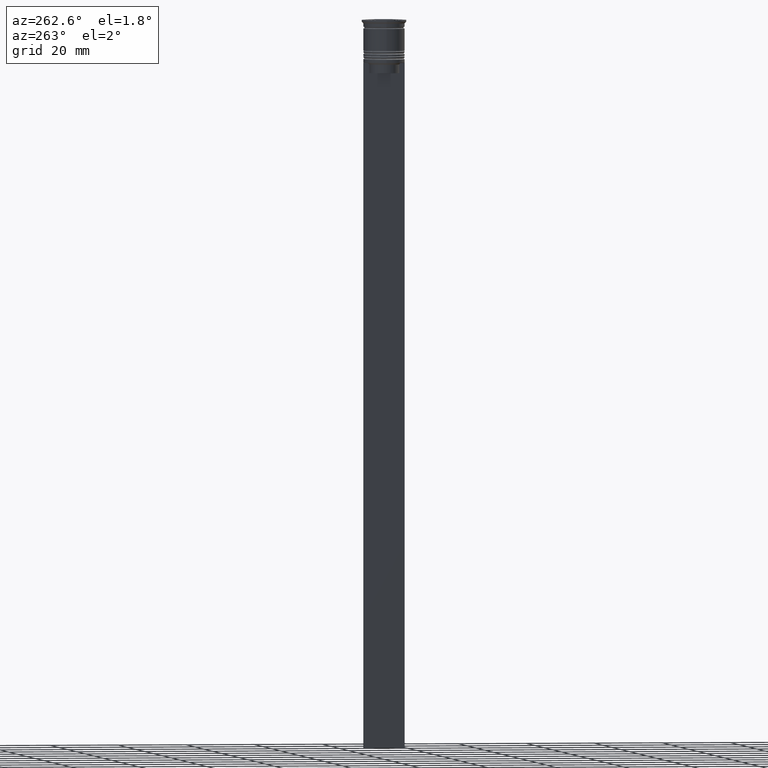
[diagram: clean part render]
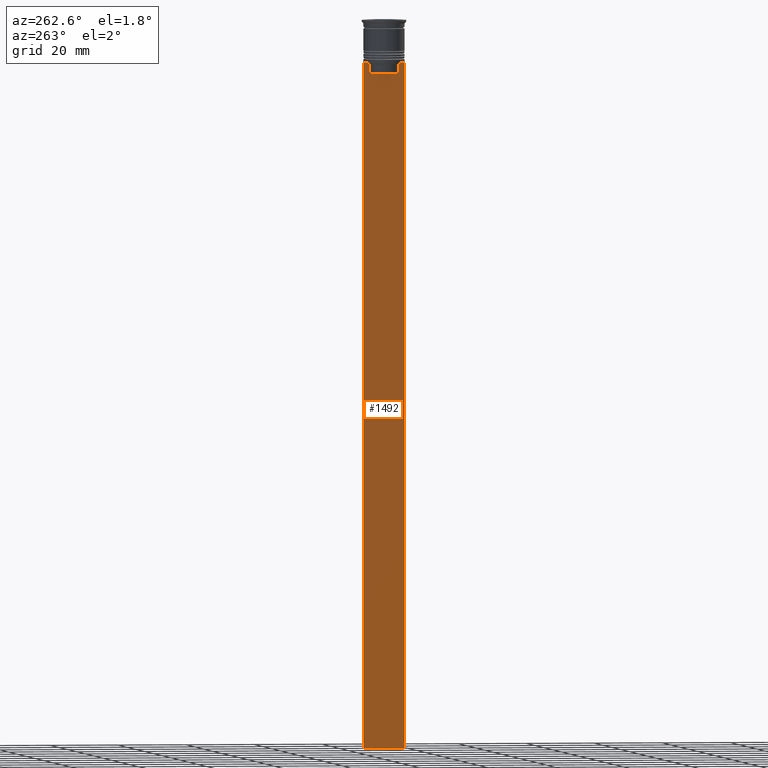
[diagram: same view with one face highlighted and labeled with its STEP entity id]
A machine part, auxiliary view. The second image highlights one B-rep face of the part: STEP entity #1492.
In plain terms, the highlighted planar face has unit normal (-1, 0, 0).
Its self-contained STEP definition (entity closure, byte-faithful):
#6 = DIRECTION ( 'NONE',  ( 0.000000000000000000, 0.000000000000000000, -1.000000000000000000 ) ) ;
#48 = CARTESIAN_POINT ( 'NONE',  ( -0.4999999999999997780, 4.371498598878878816, -15.50000000000000000 ) ) ;
#117 = VECTOR ( 'NONE', #2243, 1000.000000000000000 ) ;
#126 = CARTESIAN_POINT ( 'NONE',  ( -0.4999999999999997780, 4.539195634199897356, -12.83338923751318816 ) ) ;
#137 = EDGE_CURVE ( 'NONE', #1241, #1750, #2020, .T. ) ;
#152 = ORIENTED_EDGE ( 'NONE', *, *, #137, .F. ) ;
#226 = EDGE_CURVE ( 'NONE', #1750, #1001, #1319, .T. ) ;
#253 = VERTEX_POINT ( 'NONE', #704 ) ;
#281 = VECTOR ( 'NONE', #1649, 1000.000000000000000 ) ;
#287 = CARTESIAN_POINT ( 'NONE',  ( -0.4999999999999997780, 5.878775382679627626, -12.50000000000000000 ) ) ;
#291 = CARTESIAN_POINT ( 'NONE',  ( -0.4999999999999997780, -6.000000000000000000, -0.4584054212077061097 ) ) ;
#295 = VECTOR ( 'NONE', #2173, 1000.000000000000000 ) ;
#306 = CARTESIAN_POINT ( 'NONE',  ( -0.4999999999999997780, -6.000000000000000000, -12.50000000000000000 ) ) ;
#385 = ORIENTED_EDGE ( 'NONE', *, *, #2204, .F. ) ;
#455 = VECTOR ( 'NONE', #1889, 1000.000000000000000 ) ;
#479 = CARTESIAN_POINT ( 'NONE',  ( -0.4999999999999997780, 4.371498598878878816, -13.00000000000000178 ) ) ;
#501 = EDGE_CURVE ( 'NONE', #1001, #253, #670, .T. ) ;
#504 = CARTESIAN_POINT ( 'NONE',  ( -0.4999999999999997780, 4.706831415367290106, -12.66671683478478982 ) ) ;
#518 = CARTESIAN_POINT ( 'NONE',  ( -0.4999999999999997780, -4.371498598878878816, 0.000000000000000000 ) ) ;
#529 = DIRECTION ( 'NONE',  ( 0.000000000000000000, 1.000000000000000000, 0.000000000000000000 ) ) ;
#559 = CARTESIAN_POINT ( 'NONE',  ( -0.4999999999999997780, 4.371498598878878816, 0.000000000000000000 ) ) ;
#602 = LINE ( 'NONE', #1032, #295 ) ;
#607 = EDGE_CURVE ( 'NONE', #253, #1152, #2485, .T. ) ;
#622 = B_SPLINE_CURVE_WITH_KNOTS ( 'NONE', 3,
 ( #832, #1993, #633, #1427 ),
 .UNSPECIFIED., .F., .F.,
 ( 4, 4 ),
 ( 0.02089901220910806920, 0.02161421017310284978 ),
 .UNSPECIFIED. ) ;
#633 = CARTESIAN_POINT ( 'NONE',  ( -0.4999999999999997780, -4.706831372970964544, -12.66671687695981596 ) ) ;
#670 = LINE ( 'NONE', #291, #455 ) ;
#685 = CARTESIAN_POINT ( 'NONE',  ( -0.4999999999999997780, -4.874423042781576676, -12.50000000000000000 ) ) ;
#696 = LINE ( 'NONE', #2023, #840 ) ;
#704 = CARTESIAN_POINT ( 'NONE',  ( -0.4999999999999997780, -6.000000000000000000, -212.5000000000000284 ) ) ;
#718 = AXIS2_PLACEMENT_3D ( 'NONE', #1552, #1403, #1330 ) ;
#726 = LINE ( 'NONE', #920, #1413 ) ;
#762 = CARTESIAN_POINT ( 'NONE',  ( -0.4999999999999997780, -6.000000000000000000, -212.5000000000000284 ) ) ;
#832 = CARTESIAN_POINT ( 'NONE',  ( -0.4999999999999997780, -4.371498598878878816, -13.00000000000000178 ) ) ;
#840 = VECTOR ( 'NONE', #1441, 1000.000000000000000 ) ;
#920 = CARTESIAN_POINT ( 'NONE',  ( -0.4999999999999997780, -6.000000000000000000, -12.50000000000000000 ) ) ;
#954 = PLANE ( 'NONE',  #718 ) ;
#970 = EDGE_CURVE ( 'NONE', #2285, #1040, #2107, .T. ) ;
#1001 = VERTEX_POINT ( 'NONE', #1918 ) ;
#1032 = CARTESIAN_POINT ( 'NONE',  ( -0.4999999999999997780, -6.000000000000000000, -12.50000000000000000 ) ) ;
#1040 = VERTEX_POINT ( 'NONE', #48 ) ;
#1074 = EDGE_CURVE ( 'NONE', #1939, #1152, #2333, .T. ) ;
#1078 = VECTOR ( 'NONE', #1223, 1000.000000000000000 ) ;
#1111 = EDGE_CURVE ( 'NONE', #1939, #1391, #602, .T. ) ;
#1152 = VERTEX_POINT ( 'NONE', #1616 ) ;
#1154 = CARTESIAN_POINT ( 'NONE',  ( -0.4999999999999997780, 4.874423042781576676, -12.50000000000000000 ) ) ;
#1157 = CARTESIAN_POINT ( 'NONE',  ( -0.4999999999999997780, -4.371498598878878816, -13.00000000000000178 ) ) ;
#1213 = EDGE_CURVE ( 'NONE', #2320, #2285, #1331, .T. ) ;
#1223 = DIRECTION ( 'NONE',  ( 0.000000000000000000, 0.000000000000000000, -1.000000000000000000 ) ) ;
#1241 = VERTEX_POINT ( 'NONE', #685 ) ;
#1247 = CARTESIAN_POINT ( 'NONE',  ( -0.4999999999999997780, -5.878775382679627626, -12.50000000000000000 ) ) ;
#1319 = LINE ( 'NONE', #306, #117 ) ;
#1320 = EDGE_CURVE ( 'NONE', #1423, #1890, #2249, .T. ) ;
#1330 = DIRECTION ( 'NONE',  ( 0.000000000000000000, 0.000000000000000000, 1.000000000000000000 ) ) ;
#1331 = B_SPLINE_CURVE_WITH_KNOTS ( 'NONE', 3,
 ( #1654, #504, #126, #479 ),
 .UNSPECIFIED., .F., .F.,
 ( 4, 4 ),
 ( 0.008336552452178418518, 0.009045730124312837891 ),
 .UNSPECIFIED. ) ;
#1335 = EDGE_CURVE ( 'NONE', #1391, #2320, #726, .T. ) ;
#1364 = CARTESIAN_POINT ( 'NONE',  ( -0.4999999999999997780, 6.000000000000001776, -12.50000000000000000 ) ) ;
#1373 = VECTOR ( 'NONE', #1878, 1000.000000000000000 ) ;
#1391 = VERTEX_POINT ( 'NONE', #287 ) ;
#1403 = DIRECTION ( 'NONE',  ( -1.000000000000000000, 0.000000000000000000, 0.000000000000000000 ) ) ;
#1413 = VECTOR ( 'NONE', #1694, 1000.000000000000000 ) ;
#1423 = VERTEX_POINT ( 'NONE', #2008 ) ;
#1427 = CARTESIAN_POINT ( 'NONE',  ( -0.4999999999999997780, -4.874423042781576676, -12.50000000000000000 ) ) ;
#1441 = DIRECTION ( 'NONE',  ( 0.000000000000000000, -1.000000000000000000, 0.000000000000000000 ) ) ;
#1492 = ADVANCED_FACE ( 'NONE', ( #1739 ), #954, .T. ) ;
#1501 = ORIENTED_EDGE ( 'NONE', *, *, #1695, .F. ) ;
#1552 = CARTESIAN_POINT ( 'NONE',  ( -0.4999999999999997780, -6.000000000000000000, -0.4584054212077061097 ) ) ;
#1579 = CARTESIAN_POINT ( 'NONE',  ( -0.4999999999999997780, 6.000000000000000888, -0.4584054212077061097 ) ) ;
#1616 = CARTESIAN_POINT ( 'NONE',  ( -0.4999999999999997780, 6.000000000000000888, -212.5000000000000284 ) ) ;
#1640 = VECTOR ( 'NONE', #6, 1000.000000000000000 ) ;
#1649 = DIRECTION ( 'NONE',  ( 0.000000000000000000, -1.000000000000000000, 0.000000000000000000 ) ) ;
#1654 = CARTESIAN_POINT ( 'NONE',  ( -0.4999999999999997780, 4.874423042781576676, -12.50000000000000000 ) ) ;
#1694 = DIRECTION ( 'NONE',  ( 0.000000000000000000, -1.000000000000000000, 0.000000000000000000 ) ) ;
#1695 = EDGE_CURVE ( 'NONE', #1040, #1423, #696, .T. ) ;
#1739 = FACE_OUTER_BOUND ( 'NONE', #1909, .T. ) ;
#1742 = ORIENTED_EDGE ( 'NONE', *, *, #1111, .F. ) ;
#1750 = VERTEX_POINT ( 'NONE', #1247 ) ;
#1874 = CARTESIAN_POINT ( 'NONE',  ( -0.4999999999999997780, 4.371498598878878816, -13.00000000000000178 ) ) ;
#1878 = DIRECTION ( 'NONE',  ( -0.000000000000000000, -0.000000000000000000, 1.000000000000000000 ) ) ;
#1889 = DIRECTION ( 'NONE',  ( 0.000000000000000000, 0.000000000000000000, -1.000000000000000000 ) ) ;
#1890 = VERTEX_POINT ( 'NONE', #1157 ) ;
#1909 = EDGE_LOOP ( 'NONE', ( #2312, #2145, #1742, #2142, #2471, #2323, #1964, #152, #385, #1919, #1501, #2208 ) ) ;
#1918 = CARTESIAN_POINT ( 'NONE',  ( -0.4999999999999997780, -6.000000000000000000, -12.50000000000000000 ) ) ;
#1919 = ORIENTED_EDGE ( 'NONE', *, *, #1320, .F. ) ;
#1939 = VERTEX_POINT ( 'NONE', #1364 ) ;
#1964 = ORIENTED_EDGE ( 'NONE', *, *, #226, .F. ) ;
#1993 = CARTESIAN_POINT ( 'NONE',  ( -0.4999999999999997780, -4.539195586926424220, -12.83338928448044136 ) ) ;
#2006 = CARTESIAN_POINT ( 'NONE',  ( -0.4999999999999997780, -6.000000000000000000, -12.50000000000000000 ) ) ;
#2008 = CARTESIAN_POINT ( 'NONE',  ( -0.4999999999999997780, -4.371498598878878816, -15.50000000000000000 ) ) ;
#2020 = LINE ( 'NONE', #2006, #281 ) ;
#2023 = CARTESIAN_POINT ( 'NONE',  ( -0.4999999999999997780, 4.399999999999999467, -15.50000000000000000 ) ) ;
#2107 = LINE ( 'NONE', #559, #1640 ) ;
#2142 = ORIENTED_EDGE ( 'NONE', *, *, #1074, .T. ) ;
#2145 = ORIENTED_EDGE ( 'NONE', *, *, #1335, .F. ) ;
#2173 = DIRECTION ( 'NONE',  ( 0.000000000000000000, -1.000000000000000000, 0.000000000000000000 ) ) ;
#2204 = EDGE_CURVE ( 'NONE', #1890, #1241, #622, .T. ) ;
#2208 = ORIENTED_EDGE ( 'NONE', *, *, #970, .F. ) ;
#2243 = DIRECTION ( 'NONE',  ( 0.000000000000000000, -1.000000000000000000, 0.000000000000000000 ) ) ;
#2249 = LINE ( 'NONE', #518, #1373 ) ;
#2285 = VERTEX_POINT ( 'NONE', #1874 ) ;
#2312 = ORIENTED_EDGE ( 'NONE', *, *, #1213, .F. ) ;
#2320 = VERTEX_POINT ( 'NONE', #1154 ) ;
#2323 = ORIENTED_EDGE ( 'NONE', *, *, #501, .F. ) ;
#2333 = LINE ( 'NONE', #1579, #1078 ) ;
#2391 = VECTOR ( 'NONE', #529, 1000.000000000000000 ) ;
#2471 = ORIENTED_EDGE ( 'NONE', *, *, #607, .F. ) ;
#2485 = LINE ( 'NONE', #762, #2391 ) ;